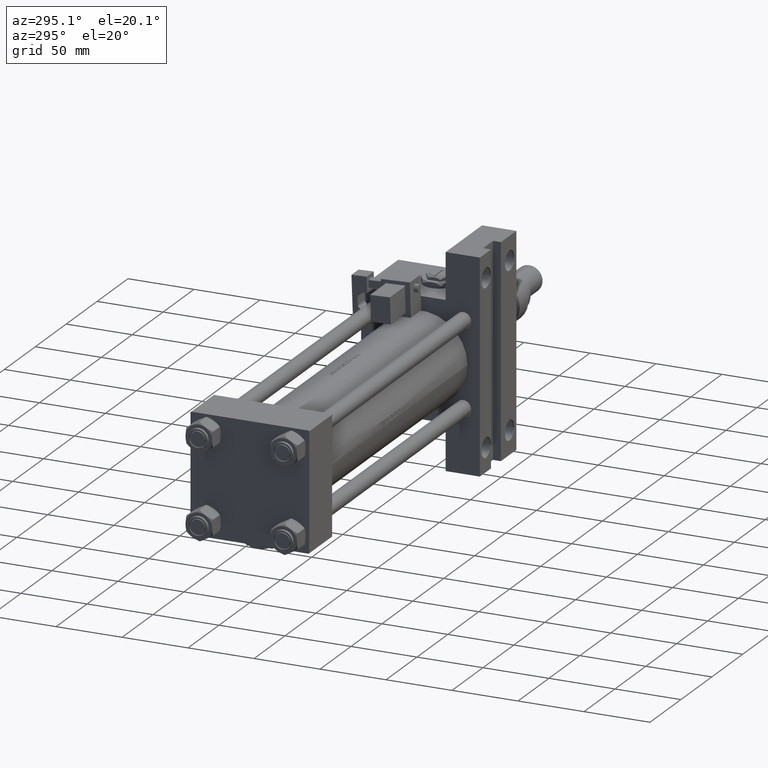
[diagram: clean part render]
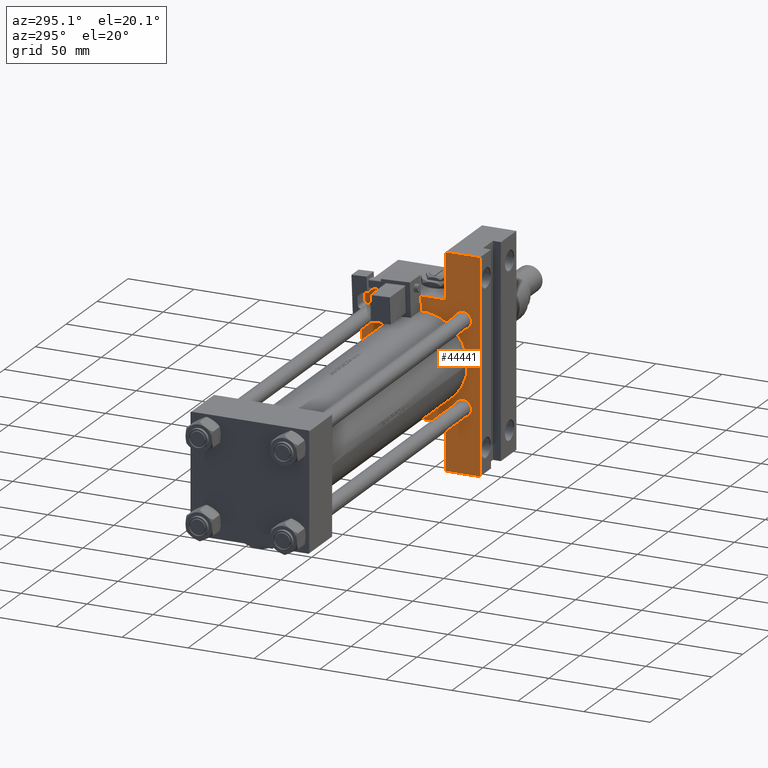
[diagram: same view with one face highlighted and labeled with its STEP entity id]
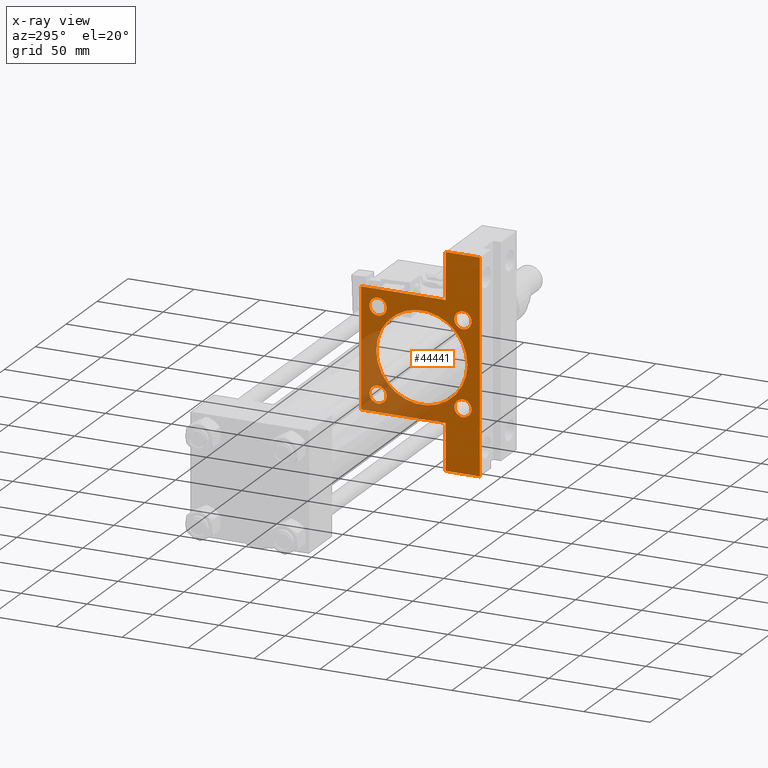
[diagram: x-ray of the same camera — body ghosted, the highlighted face saturated]
A machine part, auxiliary view. The second image highlights one B-rep face of the part: STEP entity #44441.
The next image is the same camera in x-ray: the body ghosted, the highlighted face saturated — about 21% of this face is hidden behind the body in this view.
In plain terms, the highlighted planar face has unit normal (-1, 0, -0).
Its self-contained STEP definition (entity closure, byte-faithful):
#120 = VECTOR ( 'NONE', #46320, 1000.000000000000000 ) ;
#947 = CARTESIAN_POINT ( 'NONE',  ( 275.9999999999999432, -45.00000000000000000, -19.00000000000000000 ) ) ;
#1171 = EDGE_CURVE ( 'NONE', #11670, #33399, #35430, .T. ) ;
#1945 = AXIS2_PLACEMENT_3D ( 'NONE', #28491, #40826, #48232 ) ;
#2051 = VERTEX_POINT ( 'NONE', #50158 ) ;
#2218 = VECTOR ( 'NONE', #11331, 1000.000000000000000 ) ;
#2232 = ORIENTED_EDGE ( 'NONE', *, *, #46594, .T. ) ;
#2442 = CARTESIAN_POINT ( 'NONE',  ( 275.9999999999999432, 79.99999999999995737, -45.00000000000000000 ) ) ;
#2627 = ORIENTED_EDGE ( 'NONE', *, *, #52113, .T. ) ;
#2714 = DIRECTION ( 'NONE',  ( 0.000000000000000000, 0.000000000000000000, 1.000000000000000000 ) ) ;
#2804 = CARTESIAN_POINT ( 'NONE',  ( 275.9999999999999432, 32.14999999999999147, 32.15000000000000568 ) ) ;
#3094 = DIRECTION ( 'NONE',  ( 0.000000000000000000, 0.000000000000000000, -1.000000000000000000 ) ) ;
#3320 = ORIENTED_EDGE ( 'NONE', *, *, #34183, .T. ) ;
#3455 = DIRECTION ( 'NONE',  ( 1.000000000000000000, 0.000000000000000000, 0.000000000000000000 ) ) ;
#4731 = AXIS2_PLACEMENT_3D ( 'NONE', #34003, #13194, #29900 ) ;
#4910 = PLANE ( 'NONE',  #19120 ) ;
#5043 = DIRECTION ( 'NONE',  ( 1.000000000000000000, 0.000000000000000000, 0.000000000000000000 ) ) ;
#5224 = CARTESIAN_POINT ( 'NONE',  ( 275.9999999999999432, 0.000000000000000000, -1.000000000000007772 ) ) ;
#5332 = EDGE_LOOP ( 'NONE', ( #28378, #46967, #17602, #35382, #9216, #8482, #37664, #44759, #27845, #47704 ) ) ;
#5345 = DIRECTION ( 'NONE',  ( 0.000000000000000000, 0.000000000000000000, 1.000000000000000000 ) ) ;
#5530 = ORIENTED_EDGE ( 'NONE', *, *, #8578, .T. ) ;
#5667 = VERTEX_POINT ( 'NONE', #7042 ) ;
#5694 = EDGE_CURVE ( 'NONE', #46419, #37220, #33303, .T. ) ;
#6900 = VERTEX_POINT ( 'NONE', #41135 ) ;
#6939 = LINE ( 'NONE', #15434, #23253 ) ;
#7042 = CARTESIAN_POINT ( 'NONE',  ( 275.9999999999999432, -32.14999999999997726, 38.65000000000002700 ) ) ;
#7353 = CIRCLE ( 'NONE', #4731, 6.500000000000012434 ) ;
#7638 = DIRECTION ( 'NONE',  ( 1.000000000000000000, 0.000000000000000000, 0.000000000000000000 ) ) ;
#7844 = EDGE_CURVE ( 'NONE', #2051, #37220, #26321, .T. ) ;
#8173 = AXIS2_PLACEMENT_3D ( 'NONE', #47226, #5043, #34359 ) ;
#8482 = ORIENTED_EDGE ( 'NONE', *, *, #5694, .T. ) ;
#8578 = EDGE_CURVE ( 'NONE', #10825, #22237, #9788, .T. ) ;
#9216 = ORIENTED_EDGE ( 'NONE', *, *, #25297, .T. ) ;
#9559 = DIRECTION ( 'NONE',  ( -0.000000000000000000, 0.7071067811865474617, 0.7071067811865474617 ) ) ;
#9788 = CIRCLE ( 'NONE', #20281, 6.499999999999999112 ) ;
#9875 = EDGE_CURVE ( 'NONE', #2051, #32767, #29832, .T. ) ;
#9974 = CARTESIAN_POINT ( 'NONE',  ( 275.9999999999999432, 4.225031457058366556E-15, -35.50000000000000711 ) ) ;
#10825 = VERTEX_POINT ( 'NONE', #12810 ) ;
#11331 = DIRECTION ( 'NONE',  ( 0.000000000000000000, 7.709882115452478166E-17, -1.000000000000000000 ) ) ;
#11604 = DIRECTION ( 'NONE',  ( 0.000000000000000000, 0.000000000000000000, -1.000000000000000000 ) ) ;
#11670 = VERTEX_POINT ( 'NONE', #34974 ) ;
#12810 = CARTESIAN_POINT ( 'NONE',  ( 275.9999999999999432, 32.14999999999999147, 38.65000000000001279 ) ) ;
#13135 = CARTESIAN_POINT ( 'NONE',  ( 275.9999999999999432, 0.000000000000000000, 0.000000000000000000 ) ) ;
#13194 = DIRECTION ( 'NONE',  ( 1.000000000000000000, 0.000000000000000000, 0.000000000000000000 ) ) ;
#13570 = VERTEX_POINT ( 'NONE', #25092 ) ;
#13709 = CARTESIAN_POINT ( 'NONE',  ( 275.9999999999999432, -80.00000000000001421, -19.00000000000000000 ) ) ;
#13715 = DIRECTION ( 'NONE',  ( -0.000000000000000000, 1.000000000000000000, -0.000000000000000000 ) ) ;
#14100 = CARTESIAN_POINT ( 'NONE',  ( 275.9999999999999432, 0.000000000000000000, 33.49999999999998579 ) ) ;
#15434 = CARTESIAN_POINT ( 'NONE',  ( 275.9999999999999432, 79.99999999999995737, -19.00000000000000000 ) ) ;
#16065 = CARTESIAN_POINT ( 'NONE',  ( 275.9999999999999432, 45.00000000000001421, 44.50000000000000000 ) ) ;
#16184 = EDGE_CURVE ( 'NONE', #43545, #5667, #30823, .T. ) ;
#16427 = DIRECTION ( 'NONE',  ( 0.000000000000000000, 0.000000000000000000, -1.000000000000000000 ) ) ;
#16636 = CARTESIAN_POINT ( 'NONE',  ( 275.9999999999999432, -45.00000000000000000, 44.49999999999998579 ) ) ;
#16983 = FACE_BOUND ( 'NONE', #27654, .T. ) ;
#17056 = AXIS2_PLACEMENT_3D ( 'NONE', #37433, #3455, #41009 ) ;
#17063 = ORIENTED_EDGE ( 'NONE', *, *, #19775, .T. ) ;
#17263 = EDGE_CURVE ( 'NONE', #45952, #13570, #40640, .T. ) ;
#17484 = EDGE_CURVE ( 'NONE', #25053, #6900, #18328, .T. ) ;
#17602 = ORIENTED_EDGE ( 'NONE', *, *, #17263, .T. ) ;
#17654 = DIRECTION ( 'NONE',  ( 1.000000000000000000, 0.000000000000000000, 0.000000000000000000 ) ) ;
#17778 = CARTESIAN_POINT ( 'NONE',  ( 275.9999999999999432, -44.74999999999999289, 44.74999999999999289 ) ) ;
#18141 = EDGE_CURVE ( 'NONE', #33399, #11670, #30029, .T. ) ;
#18328 = LINE ( 'NONE', #17778, #40534 ) ;
#18827 = VERTEX_POINT ( 'NONE', #40888 ) ;
#19120 = AXIS2_PLACEMENT_3D ( 'NONE', #13135, #42458, #53965 ) ;
#19544 = DIRECTION ( 'NONE',  ( 1.000000000000000000, 0.000000000000000000, 0.000000000000000000 ) ) ;
#19775 = EDGE_CURVE ( 'NONE', #5667, #43545, #7353, .T. ) ;
#20052 = CIRCLE ( 'NONE', #34017, 6.499999999999999112 ) ;
#20053 = ORIENTED_EDGE ( 'NONE', *, *, #41765, .T. ) ;
#20281 = AXIS2_PLACEMENT_3D ( 'NONE', #2804, #19544, #5345 ) ;
#20305 = VECTOR ( 'NONE', #33573, 1000.000000000000000 ) ;
#22221 = CARTESIAN_POINT ( 'NONE',  ( 275.9999999999999432, 79.99999999999995737, -19.00000000000000000 ) ) ;
#22237 = VERTEX_POINT ( 'NONE', #45357 ) ;
#23253 = VECTOR ( 'NONE', #3094, 1000.000000000000000 ) ;
#23588 = AXIS2_PLACEMENT_3D ( 'NONE', #36447, #48776, #16427 ) ;
#23622 = ORIENTED_EDGE ( 'NONE', *, *, #30760, .T. ) ;
#24351 = DIRECTION ( 'NONE',  ( 0.000000000000000000, 0.7071067811865474617, -0.7071067811865474617 ) ) ;
#24511 = DIRECTION ( 'NONE',  ( 0.000000000000000000, -1.000000000000000000, -1.541976423090495140E-16 ) ) ;
#24585 = EDGE_LOOP ( 'NONE', ( #17063, #40139 ) ) ;
#24675 = FACE_OUTER_BOUND ( 'NONE', #5332, .T. ) ;
#25053 = VERTEX_POINT ( 'NONE', #16636 ) ;
#25092 = CARTESIAN_POINT ( 'NONE',  ( 275.9999999999999432, 45.00000000000001421, -18.99999999999997513 ) ) ;
#25220 = AXIS2_PLACEMENT_3D ( 'NONE', #27242, #17654, #31066 ) ;
#25251 = EDGE_CURVE ( 'NONE', #25053, #32767, #40902, .T. ) ;
#25297 = EDGE_CURVE ( 'NONE', #45236, #46419, #6939, .T. ) ;
#26167 = VECTOR ( 'NONE', #24511, 1000.000000000000000 ) ;
#26321 = LINE ( 'NONE', #13709, #120 ) ;
#26549 = EDGE_CURVE ( 'NONE', #35796, #45952, #32824, .T. ) ;
#26752 = CARTESIAN_POINT ( 'NONE',  ( 275.9999999999999432, 32.14999999999999147, -25.64999999999999147 ) ) ;
#27242 = CARTESIAN_POINT ( 'NONE',  ( 275.9999999999999432, 32.14999999999999147, -32.15000000000000568 ) ) ;
#27546 = ORIENTED_EDGE ( 'NONE', *, *, #18141, .T. ) ;
#27654 = EDGE_LOOP ( 'NONE', ( #3320, #20053 ) ) ;
#27845 = ORIENTED_EDGE ( 'NONE', *, *, #25251, .F. ) ;
#28189 = CARTESIAN_POINT ( 'NONE',  ( 275.9999999999999432, 44.75000000000001421, 44.75000000000001421 ) ) ;
#28198 = DIRECTION ( 'NONE',  ( 1.000000000000000000, 0.000000000000000000, 0.000000000000000000 ) ) ;
#28378 = ORIENTED_EDGE ( 'NONE', *, *, #32917, .F. ) ;
#28491 = CARTESIAN_POINT ( 'NONE',  ( 275.9999999999999432, -32.14999999999997726, 32.15000000000001279 ) ) ;
#29152 = LINE ( 'NONE', #49698, #26167 ) ;
#29832 = LINE ( 'NONE', #34202, #53540 ) ;
#29900 = DIRECTION ( 'NONE',  ( 0.000000000000000000, 0.000000000000000000, 1.000000000000000000 ) ) ;
#30029 = CIRCLE ( 'NONE', #8173, 6.500000000000012434 ) ;
#30723 = VERTEX_POINT ( 'NONE', #9974 ) ;
#30760 = EDGE_CURVE ( 'NONE', #18827, #37105, #39214, .T. ) ;
#30823 = CIRCLE ( 'NONE', #1945, 6.500000000000012434 ) ;
#31066 = DIRECTION ( 'NONE',  ( 0.000000000000000000, 0.000000000000000000, 1.000000000000000000 ) ) ;
#32033 = VECTOR ( 'NONE', #24351, 1000.000000000000114 ) ;
#32200 = CARTESIAN_POINT ( 'NONE',  ( 275.9999999999999432, -80.00000000000001421, -45.00000000000000000 ) ) ;
#32448 = EDGE_LOOP ( 'NONE', ( #5530, #2232 ) ) ;
#32767 = VERTEX_POINT ( 'NONE', #947 ) ;
#32824 = LINE ( 'NONE', #28189, #32033 ) ;
#32917 = EDGE_CURVE ( 'NONE', #35796, #6900, #29152, .T. ) ;
#33097 = DIRECTION ( 'NONE',  ( 0.000000000000000000, 0.000000000000000000, 1.000000000000000000 ) ) ;
#33237 = AXIS2_PLACEMENT_3D ( 'NONE', #44900, #28198, #33097 ) ;
#33303 = LINE ( 'NONE', #45916, #20305 ) ;
#33399 = VERTEX_POINT ( 'NONE', #52253 ) ;
#33573 = DIRECTION ( 'NONE',  ( 0.000000000000000000, -1.000000000000000000, 0.000000000000000000 ) ) ;
#33947 = FACE_BOUND ( 'NONE', #50199, .T. ) ;
#34003 = CARTESIAN_POINT ( 'NONE',  ( 275.9999999999999432, -32.14999999999997726, 32.15000000000001279 ) ) ;
#34017 = AXIS2_PLACEMENT_3D ( 'NONE', #36687, #7638, #2714 ) ;
#34183 = EDGE_CURVE ( 'NONE', #46960, #30723, #47182, .T. ) ;
#34202 = CARTESIAN_POINT ( 'NONE',  ( 275.9999999999999432, -80.00000000000001421, -19.00000000000000000 ) ) ;
#34359 = DIRECTION ( 'NONE',  ( 0.000000000000000000, 0.000000000000000000, 1.000000000000000000 ) ) ;
#34828 = CARTESIAN_POINT ( 'NONE',  ( 275.9999999999999432, 79.99999999999995737, -19.00000000000000000 ) ) ;
#34974 = CARTESIAN_POINT ( 'NONE',  ( 275.9999999999999432, -32.14999999999997726, -38.65000000000002700 ) ) ;
#35382 = ORIENTED_EDGE ( 'NONE', *, *, #48517, .T. ) ;
#35430 = CIRCLE ( 'NONE', #17056, 6.500000000000012434 ) ;
#35796 = VERTEX_POINT ( 'NONE', #52050 ) ;
#35890 = LINE ( 'NONE', #22221, #48857 ) ;
#36447 = CARTESIAN_POINT ( 'NONE',  ( 275.9999999999999432, 0.000000000000000000, -1.000000000000007772 ) ) ;
#36687 = CARTESIAN_POINT ( 'NONE',  ( 275.9999999999999432, 32.14999999999999147, 32.15000000000000568 ) ) ;
#37105 = VERTEX_POINT ( 'NONE', #26752 ) ;
#37220 = VERTEX_POINT ( 'NONE', #32200 ) ;
#37433 = CARTESIAN_POINT ( 'NONE',  ( 275.9999999999999432, -32.14999999999997726, -32.15000000000001279 ) ) ;
#37664 = ORIENTED_EDGE ( 'NONE', *, *, #7844, .F. ) ;
#38128 = DIRECTION ( 'NONE',  ( 1.000000000000000000, 0.000000000000000000, 0.000000000000000000 ) ) ;
#38393 = DIRECTION ( 'NONE',  ( 0.000000000000000000, 0.000000000000000000, -1.000000000000000000 ) ) ;
#39214 = CIRCLE ( 'NONE', #25220, 6.500000000000012434 ) ;
#40139 = ORIENTED_EDGE ( 'NONE', *, *, #16184, .T. ) ;
#40534 = VECTOR ( 'NONE', #9559, 1000.000000000000114 ) ;
#40640 = LINE ( 'NONE', #41905, #45760 ) ;
#40826 = DIRECTION ( 'NONE',  ( 1.000000000000000000, 0.000000000000000000, 0.000000000000000000 ) ) ;
#40847 = AXIS2_PLACEMENT_3D ( 'NONE', #5224, #38128, #38393 ) ;
#40888 = CARTESIAN_POINT ( 'NONE',  ( 275.9999999999999432, 32.14999999999999147, -38.65000000000001990 ) ) ;
#40902 = LINE ( 'NONE', #44470, #2218 ) ;
#41009 = DIRECTION ( 'NONE',  ( 0.000000000000000000, 0.000000000000000000, 1.000000000000000000 ) ) ;
#41135 = CARTESIAN_POINT ( 'NONE',  ( 275.9999999999999432, -44.49999999999997158, 44.99999999999998579 ) ) ;
#41765 = EDGE_CURVE ( 'NONE', #30723, #46960, #48713, .T. ) ;
#41905 = CARTESIAN_POINT ( 'NONE',  ( 275.9999999999999432, 45.00000000000001421, 45.00000000000000000 ) ) ;
#42458 = DIRECTION ( 'NONE',  ( -1.000000000000000000, 0.000000000000000000, -0.000000000000000000 ) ) ;
#43545 = VERTEX_POINT ( 'NONE', #45620 ) ;
#44176 = ORIENTED_EDGE ( 'NONE', *, *, #1171, .T. ) ;
#44441 = ADVANCED_FACE ( 'NONE', ( #46019, #49853, #46556, #33947, #16983, #24675 ), #4910, .T. ) ;
#44470 = CARTESIAN_POINT ( 'NONE',  ( 275.9999999999999432, -45.00000000000000000, 44.99999999999998579 ) ) ;
#44759 = ORIENTED_EDGE ( 'NONE', *, *, #9875, .T. ) ;
#44900 = CARTESIAN_POINT ( 'NONE',  ( 275.9999999999999432, 32.14999999999999147, -32.15000000000000568 ) ) ;
#45236 = VERTEX_POINT ( 'NONE', #34828 ) ;
#45357 = CARTESIAN_POINT ( 'NONE',  ( 275.9999999999999432, 32.14999999999999147, 25.65000000000000213 ) ) ;
#45620 = CARTESIAN_POINT ( 'NONE',  ( 275.9999999999999432, -32.14999999999997726, 25.64999999999999858 ) ) ;
#45760 = VECTOR ( 'NONE', #11604, 1000.000000000000000 ) ;
#45916 = CARTESIAN_POINT ( 'NONE',  ( 275.9999999999999432, 45.00000000000001421, -45.00000000000000000 ) ) ;
#45952 = VERTEX_POINT ( 'NONE', #16065 ) ;
#46019 = FACE_BOUND ( 'NONE', #24585, .T. ) ;
#46320 = DIRECTION ( 'NONE',  ( 0.000000000000000000, 0.000000000000000000, -1.000000000000000000 ) ) ;
#46382 = CIRCLE ( 'NONE', #33237, 6.500000000000012434 ) ;
#46419 = VERTEX_POINT ( 'NONE', #2442 ) ;
#46546 = DIRECTION ( 'NONE',  ( 0.000000000000000000, 1.000000000000000000, 0.000000000000000000 ) ) ;
#46556 = FACE_BOUND ( 'NONE', #47339, .T. ) ;
#46594 = EDGE_CURVE ( 'NONE', #22237, #10825, #20052, .T. ) ;
#46960 = VERTEX_POINT ( 'NONE', #14100 ) ;
#46967 = ORIENTED_EDGE ( 'NONE', *, *, #26549, .T. ) ;
#47182 = CIRCLE ( 'NONE', #23588, 34.49999999999999289 ) ;
#47226 = CARTESIAN_POINT ( 'NONE',  ( 275.9999999999999432, -32.14999999999997726, -32.15000000000001279 ) ) ;
#47339 = EDGE_LOOP ( 'NONE', ( #2627, #23622 ) ) ;
#47704 = ORIENTED_EDGE ( 'NONE', *, *, #17484, .T. ) ;
#48232 = DIRECTION ( 'NONE',  ( 0.000000000000000000, 0.000000000000000000, 1.000000000000000000 ) ) ;
#48517 = EDGE_CURVE ( 'NONE', #13570, #45236, #35890, .T. ) ;
#48713 = CIRCLE ( 'NONE', #40847, 34.49999999999999289 ) ;
#48776 = DIRECTION ( 'NONE',  ( 1.000000000000000000, 0.000000000000000000, 0.000000000000000000 ) ) ;
#48857 = VECTOR ( 'NONE', #13715, 1000.000000000000000 ) ;
#49698 = CARTESIAN_POINT ( 'NONE',  ( 275.9999999999999432, 45.00000000000001421, 45.00000000000000000 ) ) ;
#49853 = FACE_BOUND ( 'NONE', #32448, .T. ) ;
#50158 = CARTESIAN_POINT ( 'NONE',  ( 275.9999999999999432, -80.00000000000001421, -19.00000000000000000 ) ) ;
#50199 = EDGE_LOOP ( 'NONE', ( #27546, #44176 ) ) ;
#52050 = CARTESIAN_POINT ( 'NONE',  ( 275.9999999999999432, 44.50000000000001421, 45.00000000000000000 ) ) ;
#52113 = EDGE_CURVE ( 'NONE', #37105, #18827, #46382, .T. ) ;
#52253 = CARTESIAN_POINT ( 'NONE',  ( 275.9999999999999432, -32.14999999999997726, -25.64999999999999858 ) ) ;
#53540 = VECTOR ( 'NONE', #46546, 1000.000000000000000 ) ;
#53965 = DIRECTION ( 'NONE',  ( -0.000000000000000000, 0.000000000000000000, 1.000000000000000000 ) ) ;